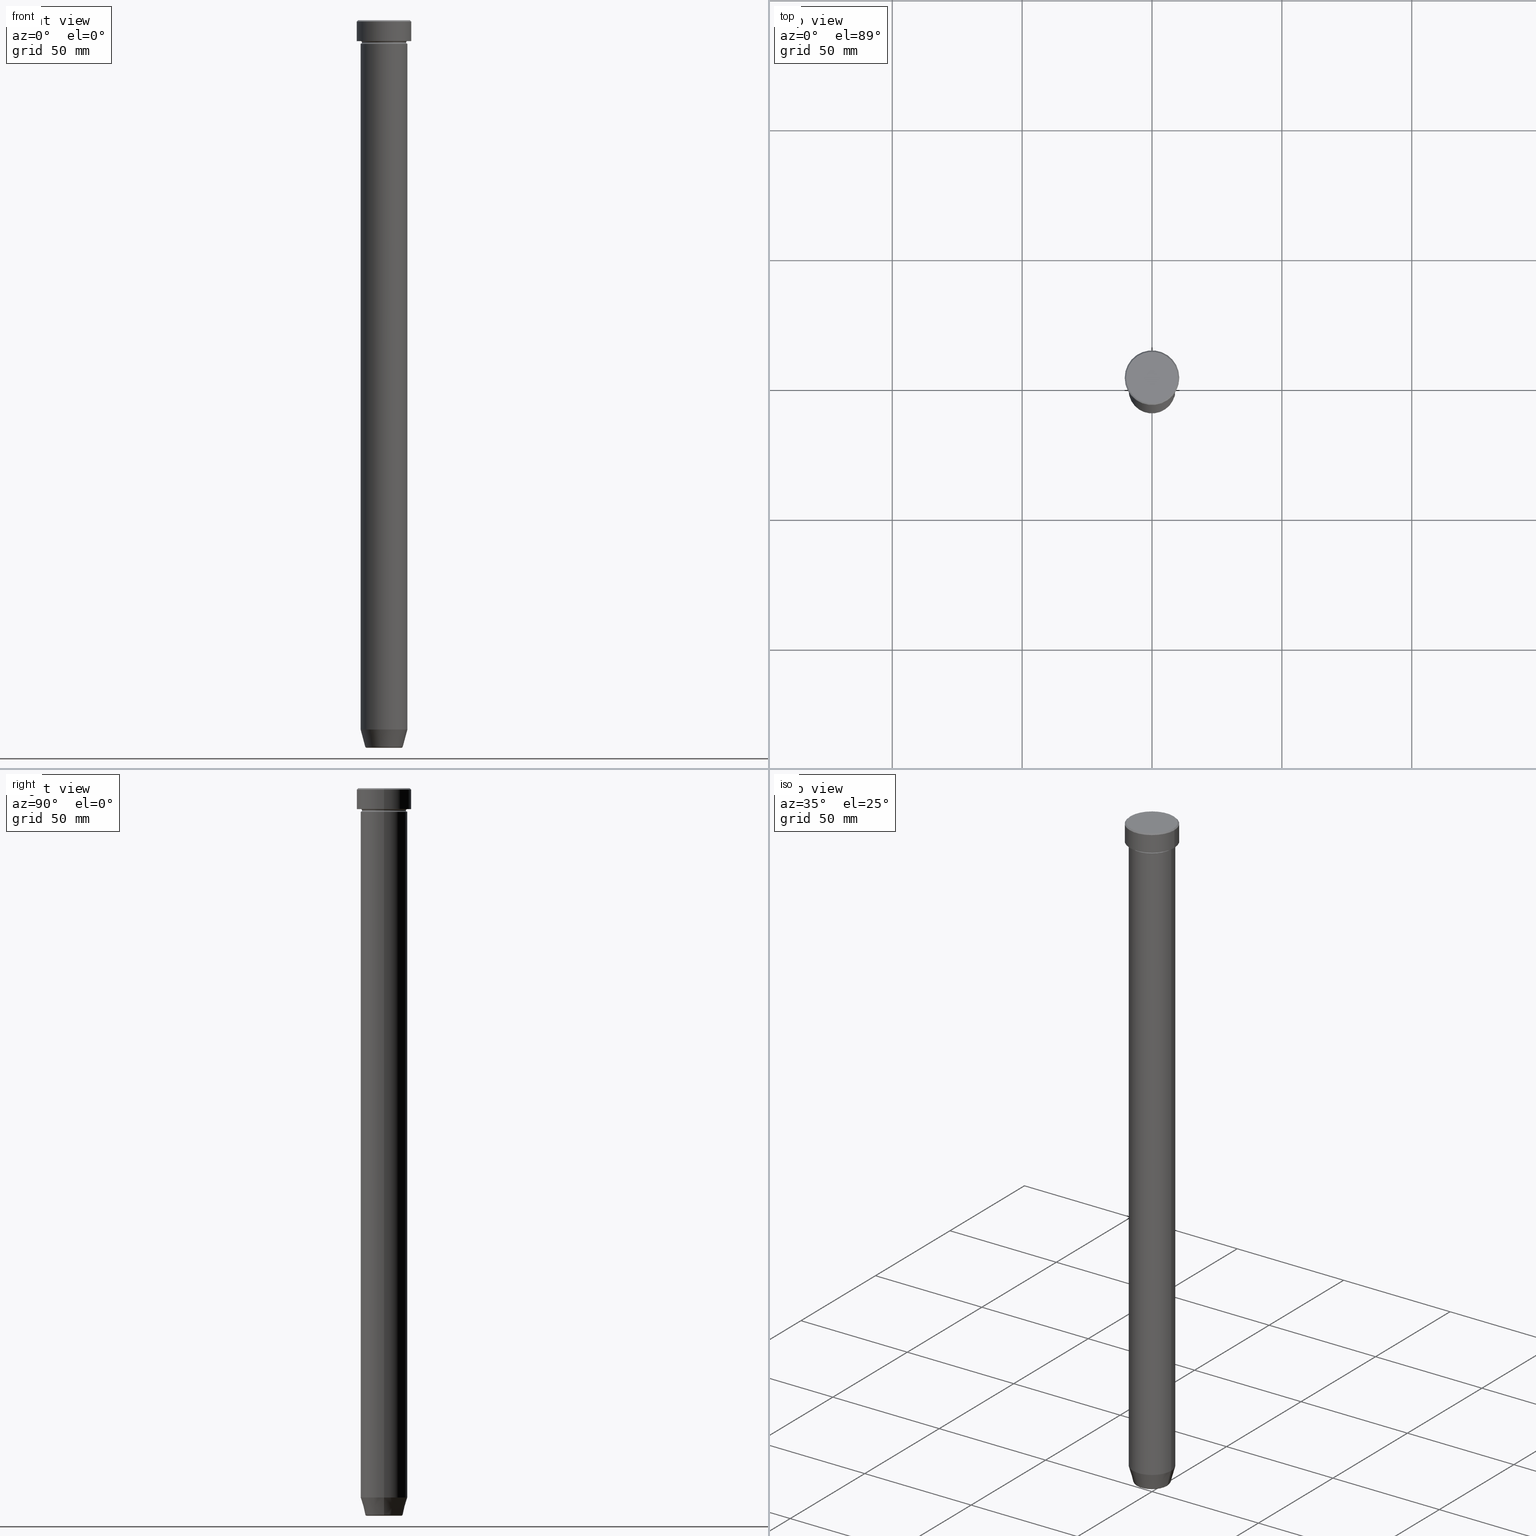
[diagram: canonical four-view strip — front | top / right | iso, engineering-drawing reading convention]
A machine part, canonical four-view strip (front | top / right | iso — engineering-drawing reading convention). The complete STEP part file that produces these views, byte-faithful:
ISO-10303-21;
HEADER;
FILE_DESCRIPTION (( 'STEP AP203' ),
    '1' );
FILE_NAME ('5276.STEP',
    '2024-01-02T20:54:48',
    ( '' ),
    ( '' ),
    'SwSTEP 2.0',
    'SolidWorks 2019',
    '' );
FILE_SCHEMA (( 'CONFIG_CONTROL_DESIGN' ));
ENDSEC;

DATA;
#1 = CARTESIAN_POINT ( 'NONE',  ( 10.50000000000000000, 0.000000000000000000, -0.5000000000000023315 ) ) ;
#2 = DIRECTION ( 'NONE',  ( -0.000000000000000000, -0.000000000000000000, 1.000000000000000000 ) ) ;
#3 = DIRECTION ( 'NONE',  ( -0.000000000000000000, -0.000000000000000000, 1.000000000000000000 ) ) ;
#4 = ADVANCED_FACE ( 'NONE', ( #550 ), #119, .T. ) ;
#5 = ORIENTED_EDGE ( 'NONE', *, *, #468, .F. ) ;
#6 = CARTESIAN_POINT ( 'NONE',  ( 9.000000000000000000, 1.102182119232617714E-15, -8.500000000000000000 ) ) ;
#7 = CIRCLE ( 'NONE', #60, 9.000000000000000000 ) ;
#8 = VECTOR ( 'NONE', #289, 1000.000000000000000 ) ;
#9 = FACE_OUTER_BOUND ( 'NONE', #254, .T. ) ;
#10 = EDGE_LOOP ( 'NONE', ( #556, #300, #425, #75 ) ) ;
#11 = EDGE_CURVE ( 'NONE', #19, #496, #234, .T. ) ;
#12 = ORIENTED_EDGE ( 'NONE', *, *, #284, .T. ) ;
#13 = LINE ( 'NONE', #472, #8 ) ;
#14 = CIRCLE ( 'NONE', #338, 6.740692158992659166 ) ;
#15 = EDGE_LOOP ( 'NONE', ( #353, #212, #362, #156 ) ) ;
#16 = PLANE ( 'NONE',  #386 ) ;
#17 = AXIS2_PLACEMENT_3D ( 'NONE', #568, #56, #240 ) ;
#18 = DIRECTION ( 'NONE',  ( 1.000000000000000000, 0.000000000000000000, 0.000000000000000000 ) ) ;
#19 = VERTEX_POINT ( 'NONE', #82 ) ;
#20 = CARTESIAN_POINT ( 'NONE',  ( 9.000000000000000000, 0.000000000000000000, -22.00000000000000000 ) ) ;
#21 = ADVANCED_FACE ( 'NONE', ( #563 ), #138, .T. ) ;
#22 = ORIENTED_EDGE ( 'NONE', *, *, #128, .T. ) ;
#23 = DIRECTION ( 'NONE',  ( -0.000000000000000000, -0.000000000000000000, 1.000000000000000000 ) ) ;
#24 = ORIENTED_EDGE ( 'NONE', *, *, #100, .F. ) ;
#25 = CIRCLE ( 'NONE', #135, 9.000000000000000000 ) ;
#26 = DIRECTION ( 'NONE',  ( -1.000000000000000000, 0.000000000000000000, 0.000000000000000000 ) ) ;
#27 = CALENDAR_DATE ( 2024, 2, 1 ) ;
#28 = ADVANCED_FACE ( 'NONE', ( #175 ), #403, .T. ) ;
#29 = DIRECTION ( 'NONE',  ( 0.7071067811865450192, 8.659560562354902043E-17, -0.7071067811865500152 ) ) ;
#30 = APPROVAL_DATE_TIME ( #586, #286 ) ;
#31 = PLANE ( 'NONE',  #354 ) ;
#32 = PERSON_AND_ORGANIZATION_ROLE ( 'design_owner' ) ;
#33 = CARTESIAN_POINT ( 'NONE',  ( 0.000000000000000000, 0.000000000000000000, 0.000000000000000000 ) ) ;
#34 = SECURITY_CLASSIFICATION_LEVEL ( 'unclassified' ) ;
#35 = EDGE_LOOP ( 'NONE', ( #433, #150, #217, #55 ) ) ;
#36 = EDGE_LOOP ( 'NONE', ( #451, #401 ) ) ;
#37 = DIRECTION ( 'NONE',  ( 0.000000000000000000, -1.000000000000000000, 0.000000000000000000 ) ) ;
#38 = VERTEX_POINT ( 'NONE', #85 ) ;
#39 = ADVANCED_FACE ( 'NONE', ( #41 ), #517, .T. ) ;
#40 = FACE_OUTER_BOUND ( 'NONE', #440, .T. ) ;
#41 = FACE_OUTER_BOUND ( 'NONE', #411, .T. ) ;
#42 = CARTESIAN_POINT ( 'NONE',  ( 0.000000000000000000, 0.000000000000000000, -8.500000000000000000 ) ) ;
#43 = DIRECTION ( 'NONE',  ( 1.000000000000000000, 0.000000000000000000, 0.000000000000000000 ) ) ;
#44 = CIRCLE ( 'NONE', #346, 10.00000000000000178 ) ;
#45 = FACE_OUTER_BOUND ( 'NONE', #241, .T. ) ;
#46 = EDGE_CURVE ( 'NONE', #413, #279, #92, .T. ) ;
#47 = DIRECTION ( 'NONE',  ( 1.000000000000000000, 0.000000000000000000, 0.000000000000000000 ) ) ;
#48 = DIRECTION ( 'NONE',  ( 1.000000000000000000, 0.000000000000000000, 0.000000000000000000 ) ) ;
#49 = PERSON ( 'NEUR�EN�', 'NEUR�EN�', 'NEUR�EN�', ('NEUR�EN�'), ('NEUR�EN�'), ('NEUR�EN�') ) ;
#50 = ORIENTED_EDGE ( 'NONE', *, *, #516, .T. ) ;
#51 = DIRECTION ( 'NONE',  ( 0.000000000000000000, 0.000000000000000000, -1.000000000000000000 ) ) ;
#52 = VECTOR ( 'NONE', #502, 1000.000000000000114 ) ;
#53 = ORIENTED_EDGE ( 'NONE', *, *, #147, .F. ) ;
#54 = CIRCLE ( 'NONE', #199, 6.740692158992659166 ) ;
#55 = ORIENTED_EDGE ( 'NONE', *, *, #492, .F. ) ;
#56 = DIRECTION ( 'NONE',  ( -0.000000000000000000, -0.000000000000000000, 1.000000000000000000 ) ) ;
#57 = VERTEX_POINT ( 'NONE', #1 ) ;
#58 = DIRECTION ( 'NONE',  ( -0.000000000000000000, -0.000000000000000000, 1.000000000000000000 ) ) ;
#59 = CARTESIAN_POINT ( 'NONE',  ( 9.000000000000000000, 0.000000000000000000, 0.000000000000000000 ) ) ;
#60 = AXIS2_PLACEMENT_3D ( 'NONE', #459, #462, #273 ) ;
#61 = CARTESIAN_POINT ( 'NONE',  ( 0.000000000000000000, 0.000000000000000000, -273.0000000000000000 ) ) ;
#62 = EDGE_CURVE ( 'NONE', #126, #421, #14, .T. ) ;
#63 = CARTESIAN_POINT ( 'NONE',  ( 9.000000000000000000, 1.102182119232617714E-15, -8.000000000000000000 ) ) ;
#64 = ORIENTED_EDGE ( 'NONE', *, *, #524, .T. ) ;
#65 = DIRECTION ( 'NONE',  ( -0.2588190451025210725, 3.169619151431769255E-17, 0.9659258262890680902 ) ) ;
#66 = DATE_AND_TIME ( #253, #363 ) ;
#67 = EDGE_CURVE ( 'NONE', #565, #129, #83, .T. ) ;
#68 = CIRCLE ( 'NONE', #113, 8.499999999999998224 ) ;
#69 = AXIS2_PLACEMENT_3D ( 'NONE', #424, #523, #229 ) ;
#70 = DIRECTION ( 'NONE',  ( -1.000000000000000000, 0.000000000000000000, 0.000000000000000000 ) ) ;
#71 = FACE_OUTER_BOUND ( 'NONE', #233, .T. ) ;
#72 = PERSON_AND_ORGANIZATION_ROLE ( 'classification_officer' ) ;
#73 = CARTESIAN_POINT ( 'NONE',  ( -9.000000000000000000, 1.102182119232617714E-15, -8.500000000000000000 ) ) ;
#74 = CALENDAR_DATE ( 2024, 2, 1 ) ;
#75 = ORIENTED_EDGE ( 'NONE', *, *, #46, .T. ) ;
#76 = CIRCLE ( 'NONE', #352, 10.50000000000000000 ) ;
#77 = CARTESIAN_POINT ( 'NONE',  ( -10.50000000000000000, 1.285879139104720831E-15, -8.000000000000000000 ) ) ;
#78 = CIRCLE ( 'NONE', #418, 10.50000000000000000 ) ;
#79 = ADVANCED_FACE ( 'NONE', ( #180 ), #579, .T. ) ;
#80 = ORIENTED_EDGE ( 'NONE', *, *, #561, .T. ) ;
#81 = DIRECTION ( 'NONE',  ( -0.000000000000000000, -0.000000000000000000, 1.000000000000000000 ) ) ;
#82 = CARTESIAN_POINT ( 'NONE',  ( 9.000000000000000000, 0.000000000000000000, -273.0000000000000000 ) ) ;
#83 = CIRCLE ( 'NONE', #178, 0.5000000000000004441 ) ;
#84 = CARTESIAN_POINT ( 'NONE',  ( -9.000000000000000000, 1.102182119232617714E-15, -273.0000000000000000 ) ) ;
#85 = CARTESIAN_POINT ( 'NONE',  ( -9.000000000000000000, 1.102182119232617714E-15, -22.00000000000000000 ) ) ;
#86 = ADVANCED_FACE ( 'NONE', ( #278 ), #452, .T. ) ;
#87 = AXIS2_PLACEMENT_3D ( 'NONE', #249, #589, #209 ) ;
#88 = FACE_OUTER_BOUND ( 'NONE', #10, .T. ) ;
#89 = CIRCLE ( 'NONE', #429, 0.5000000000000004441 ) ;
#90 = DIRECTION ( 'NONE',  ( 1.000000000000000000, 0.000000000000000000, 0.000000000000000000 ) ) ;
#91 = CC_DESIGN_DATE_AND_TIME_ASSIGNMENT ( #66, #198, ( #405 ) ) ;
#92 = CIRCLE ( 'NONE', #482, 9.000000000000000000 ) ;
#93 = DIRECTION ( 'NONE',  ( -0.000000000000000000, -1.000000000000000000, -0.000000000000000000 ) ) ;
#94 = EDGE_LOOP ( 'NONE', ( #342, #368 ) ) ;
#95 = CYLINDRICAL_SURFACE ( 'NONE', #17, 10.50000000000000000 ) ;
#96 = AXIS2_PLACEMENT_3D ( 'NONE', #223, #412, #48 ) ;
#97 = ADVANCED_FACE ( 'NONE', ( #595 ), #102, .T. ) ;
#98 = CARTESIAN_POINT ( 'NONE',  ( 6.740692158992659166, 0.000000000000000000, -279.5000000000000000 ) ) ;
#99 = CARTESIAN_POINT ( 'NONE',  ( 0.000000000000000000, 0.000000000000000000, -8.000000000000000000 ) ) ;
#100 = EDGE_CURVE ( 'NONE', #406, #57, #306, .T. ) ;
#101 = VERTEX_POINT ( 'NONE', #566 ) ;
#102 = PLANE ( 'NONE',  #69 ) ;
#103 = DIRECTION ( 'NONE',  ( -0.000000000000000000, -0.000000000000000000, 1.000000000000000000 ) ) ;
#104 = CC_DESIGN_PERSON_AND_ORGANIZATION_ASSIGNMENT ( #159, #439, ( #374 ) ) ;
#105 = ORIENTED_EDGE ( 'NONE', *, *, #596, .F. ) ;
#106 = DIRECTION ( 'NONE',  ( 1.000000000000000000, 0.000000000000000000, 0.000000000000000000 ) ) ;
#107 = APPROVAL_ROLE ( '' ) ;
#108 = EDGE_CURVE ( 'NONE', #421, #126, #54, .T. ) ;
#109 = PLANE ( 'NONE',  #87 ) ;
#110 = APPROVAL_DATE_TIME ( #345, #463 ) ;
#111 = ORIENTED_EDGE ( 'NONE', *, *, #329, .T. ) ;
#112 = PRODUCT_DEFINITION_SHAPE ( 'NONE', 'NONE',  #422 ) ;
#113 = AXIS2_PLACEMENT_3D ( 'NONE', #179, #315, #552 ) ;
#114 = CIRCLE ( 'NONE', #283, 9.000000000000000000 ) ;
#115 = LINE ( 'NONE', #441, #270 ) ;
#116 = CARTESIAN_POINT ( 'NONE',  ( 0.000000000000000000, 0.000000000000000000, -22.00000000000000000 ) ) ;
#117 = COORDINATED_UNIVERSAL_TIME_OFFSET ( 1, 0, .AHEAD. ) ;
#118 = VERTEX_POINT ( 'NONE', #20 ) ;
#119 = CONICAL_SURFACE ( 'NONE', #255, 7.124355652982136355, 0.2617993877991497964 ) ;
#120 = EDGE_CURVE ( 'NONE', #118, #413, #140, .T. ) ;
#121 = DIRECTION ( 'NONE',  ( 1.000000000000000000, 0.000000000000000000, 0.000000000000000000 ) ) ;
#122 = VERTEX_POINT ( 'NONE', #143 ) ;
#123 = AXIS2_PLACEMENT_3D ( 'NONE', #6, #419, #515 ) ;
#124 = FACE_OUTER_BOUND ( 'NONE', #230, .T. ) ;
#125 = AXIS2_PLACEMENT_3D ( 'NONE', #347, #544, #246 ) ;
#126 = VERTEX_POINT ( 'NONE', #194 ) ;
#127 = LINE ( 'NONE', #137, #236 ) ;
#128 = EDGE_CURVE ( 'NONE', #431, #153, #520, .T. ) ;
#129 = VERTEX_POINT ( 'NONE', #321 ) ;
#130 = DIRECTION ( 'NONE',  ( -0.000000000000000000, -0.000000000000000000, 1.000000000000000000 ) ) ;
#131 = DIRECTION ( 'NONE',  ( 0.000000000000000000, 0.000000000000000000, -1.000000000000000000 ) ) ;
#132 = AXIS2_PLACEMENT_3D ( 'NONE', #183, #2, #557 ) ;
#133 = DIRECTION ( 'NONE',  ( 0.000000000000000000, 0.000000000000000000, -1.000000000000000000 ) ) ;
#134 = EDGE_LOOP ( 'NONE', ( #272, #382 ) ) ;
#135 = AXIS2_PLACEMENT_3D ( 'NONE', #197, #539, #384 ) ;
#136 = ORIENTED_EDGE ( 'NONE', *, *, #359, .T. ) ;
#137 = CARTESIAN_POINT ( 'NONE',  ( -10.00000000000000178, 0.000000000000000000, 0.000000000000000000 ) ) ;
#138 = CYLINDRICAL_SURFACE ( 'NONE', #474, 9.000000000000000000 ) ;
#139 = ADVANCED_FACE ( 'NONE', ( #373 ), #325, .T. ) ;
#140 = LINE ( 'NONE', #59, #404 ) ;
#141 = AXIS2_PLACEMENT_3D ( 'NONE', #99, #377, #575 ) ;
#142 = UNCERTAINTY_MEASURE_WITH_UNIT (LENGTH_MEASURE( 1.000000000000000082E-05 ), #277, 'distance_accuracy_value', 'NONE');
#143 = CARTESIAN_POINT ( 'NONE',  ( -9.000000000000000000, 1.102182119232617714E-15, -22.00000000000000000 ) ) ;
#144 = AXIS2_PLACEMENT_3D ( 'NONE', #173, #37, #454 ) ;
#145 = CIRCLE ( 'NONE', #490, 10.00000000000000178 ) ;
#146 = DIRECTION ( 'NONE',  ( 1.000000000000000000, 0.000000000000000000, 0.000000000000000000 ) ) ;
#147 = EDGE_CURVE ( 'NONE', #153, #57, #13, .T. ) ;
#148 = ORIENTED_EDGE ( 'NONE', *, *, #174, .F. ) ;
#149 = FACE_OUTER_BOUND ( 'NONE', #521, .T. ) ;
#150 = ORIENTED_EDGE ( 'NONE', *, *, #267, .T. ) ;
#151 = LOCAL_TIME ( 21, 54, 48.00000000000000000, #442 ) ;
#152 = AXIS2_PLACEMENT_3D ( 'NONE', #61, #573, #572 ) ;
#153 = VERTEX_POINT ( 'NONE', #328 ) ;
#154 = CARTESIAN_POINT ( 'NONE',  ( -6.740692158992659166, 8.254967076548021241E-16, -279.5000000000000000 ) ) ;
#155 = APPROVAL_DATE_TIME ( #302, #409 ) ;
#156 = ORIENTED_EDGE ( 'NONE', *, *, #200, .F. ) ;
#157 = DIRECTION ( 'NONE',  ( 1.224646799147353207E-16, 1.000000000000000000, 0.000000000000000000 ) ) ;
#158 = EDGE_CURVE ( 'NONE', #126, #196, #193, .T. ) ;
#159 = PERSON_AND_ORGANIZATION ( #49, #477 ) ;
#160 = CARTESIAN_POINT ( 'NONE',  ( -10.00000000000000178, 0.000000000000000000, 0.000000000000000000 ) ) ;
#161 = PERSON_AND_ORGANIZATION ( #49, #477 ) ;
#162 = CIRCLE ( 'NONE', #511, 0.5000000000000004441 ) ;
#163 = DIRECTION ( 'NONE',  ( 1.000000000000000000, 0.000000000000000000, 0.000000000000000000 ) ) ;
#164 = ORIENTED_EDGE ( 'NONE', *, *, #561, .F. ) ;
#165 = EDGE_CURVE ( 'NONE', #19, #320, #324, .T. ) ;
#166 = CARTESIAN_POINT ( 'NONE',  ( 0.000000000000000000, 0.000000000000000000, 0.000000000000000000 ) ) ;
#167 = MECHANICAL_CONTEXT ( 'NONE', #501, 'mechanical' ) ;
#168 = VERTEX_POINT ( 'NONE', #235 ) ;
#169 = CARTESIAN_POINT ( 'NONE',  ( 8.499999999999998224, 0.000000000000000000, -8.500000000000000000 ) ) ;
#170 = DIRECTION ( 'NONE',  ( -0.000000000000000000, -0.000000000000000000, 1.000000000000000000 ) ) ;
#171 = ORIENTED_EDGE ( 'NONE', *, *, #378, .F. ) ;
#172 = APPROVAL_PERSON_ORGANIZATION ( #340, #463, #247 ) ;
#173 = CARTESIAN_POINT ( 'NONE',  ( 9.000000000000000000, 0.000000000000000000, -8.500000000000000000 ) ) ;
#174 = EDGE_CURVE ( 'NONE', #122, #118, #541, .T. ) ;
#175 = FACE_OUTER_BOUND ( 'NONE', #479, .T. ) ;
#176 = LINE ( 'NONE', #554, #52 ) ;
#177 = CARTESIAN_POINT ( 'NONE',  ( 0.000000000000000000, 0.000000000000000000, -280.0000000000000000 ) ) ;
#178 = AXIS2_PLACEMENT_3D ( 'NONE', #555, #93, #131 ) ;
#179 = CARTESIAN_POINT ( 'NONE',  ( 0.000000000000000000, 0.000000000000000000, -8.500000000000000000 ) ) ;
#180 = FACE_OUTER_BOUND ( 'NONE', #290, .T. ) ;
#181 = ORIENTED_EDGE ( 'NONE', *, *, #62, .F. ) ;
#182 = AXIS2_PLACEMENT_3D ( 'NONE', #357, #130, #90 ) ;
#183 = CARTESIAN_POINT ( 'NONE',  ( 0.000000000000000000, 0.000000000000000000, 0.000000000000000000 ) ) ;
#184 = DIRECTION ( 'NONE',  ( 1.000000000000000000, 0.000000000000000000, 0.000000000000000000 ) ) ;
#185 = AXIS2_PLACEMENT_3D ( 'NONE', #380, #327, #191 ) ;
#186 = ORIENTED_EDGE ( 'NONE', *, *, #292, .T. ) ;
#187 = EDGE_CURVE ( 'NONE', #129, #391, #499, .T. ) ;
#188 = DIRECTION ( 'NONE',  ( 0.000000000000000000, 0.000000000000000000, -1.000000000000000000 ) ) ;
#189 = ORIENTED_EDGE ( 'NONE', *, *, #341, .F. ) ;
#190 = CARTESIAN_POINT ( 'NONE',  ( 0.000000000000000000, 0.000000000000000000, -279.5000000000000000 ) ) ;
#191 = DIRECTION ( 'NONE',  ( 1.000000000000000000, 0.000000000000000000, 0.000000000000000000 ) ) ;
#192 = EDGE_CURVE ( 'NONE', #153, #431, #78, .T. ) ;
#193 = CIRCLE ( 'NONE', #297, 0.5000000000000004441 ) ;
#194 = CARTESIAN_POINT ( 'NONE',  ( 6.740692158992659166, 0.000000000000000000, -280.0000000000000000 ) ) ;
#195 = CARTESIAN_POINT ( 'NONE',  ( 0.000000000000000000, 10.50000000000000000, -8.000000000000000000 ) ) ;
#196 = VERTEX_POINT ( 'NONE', #285 ) ;
#197 = CARTESIAN_POINT ( 'NONE',  ( 0.000000000000000000, 0.000000000000000000, -22.00000000000000000 ) ) ;
#198 = DATE_TIME_ROLE ( 'classification_date' ) ;
#199 = AXIS2_PLACEMENT_3D ( 'NONE', #473, #370, #529 ) ;
#200 = EDGE_CURVE ( 'NONE', #496, #19, #220, .T. ) ;
#201 = ORIENTED_EDGE ( 'NONE', *, *, #187, .T. ) ;
#202 = DIRECTION ( 'NONE',  ( -1.000000000000000000, 1.224646799147353454E-16, 0.000000000000000000 ) ) ;
#203 = PERSON_AND_ORGANIZATION ( #49, #477 ) ;
#204 = AXIS2_PLACEMENT_3D ( 'NONE', #509, #170, #319 ) ;
#205 = FACE_OUTER_BOUND ( 'NONE', #94, .T. ) ;
#206 = APPLICATION_PROTOCOL_DEFINITION ( 'international standard', 'config_control_design', 1994, #501 ) ;
#207 = ADVANCED_FACE ( 'NONE', ( #9 ), #95, .T. ) ;
#208 = APPROVAL_PERSON_ORGANIZATION ( #390, #409, #107 ) ;
#209 = DIRECTION ( 'NONE',  ( 1.000000000000000000, 0.000000000000000000, 0.000000000000000000 ) ) ;
#210 = COORDINATED_UNIVERSAL_TIME_OFFSET ( 1, 0, .AHEAD. ) ;
#211 = ORIENTED_EDGE ( 'NONE', *, *, #200, .T. ) ;
#212 = ORIENTED_EDGE ( 'NONE', *, *, #533, .T. ) ;
#213 = DIRECTION ( 'NONE',  ( -0.000000000000000000, -0.000000000000000000, 1.000000000000000000 ) ) ;
#214 = ORIENTED_EDGE ( 'NONE', *, *, #475, .T. ) ;
#215 = MANIFOLD_SOLID_BREP ( 'Zkosen�1', #379 ) ;
#216 = ADVANCED_FACE ( 'NONE', ( #420, #432 ), #16, .T. ) ;
#217 = ORIENTED_EDGE ( 'NONE', *, *, #11, .F. ) ;
#218 = APPROVAL_PERSON_ORGANIZATION ( #484, #286, #547 ) ;
#219 = DIRECTION ( 'NONE',  ( 1.000000000000000000, 0.000000000000000000, 0.000000000000000000 ) ) ;
#220 = CIRCLE ( 'NONE', #152, 9.000000000000000000 ) ;
#221 = DIRECTION ( 'NONE',  ( 1.000000000000000000, 0.000000000000000000, 0.000000000000000000 ) ) ;
#222 = ORIENTED_EDGE ( 'NONE', *, *, #475, .F. ) ;
#223 = CARTESIAN_POINT ( 'NONE',  ( 0.000000000000000000, 0.000000000000000000, -8.500000000000000000 ) ) ;
#224 = DIRECTION ( 'NONE',  ( 0.000000000000000000, 0.000000000000000000, -1.000000000000000000 ) ) ;
#225 = ORIENTED_EDGE ( 'NONE', *, *, #322, .T. ) ;
#226 = ADVANCED_FACE ( 'NONE', ( #149 ), #571, .T. ) ;
#227 = AXIS2_PLACEMENT_3D ( 'NONE', #42, #133, #414 ) ;
#228 = DIRECTION ( 'NONE',  ( 1.000000000000000000, 0.000000000000000000, 0.000000000000000000 ) ) ;
#229 = DIRECTION ( 'NONE',  ( -1.000000000000000000, 0.000000000000000000, -0.000000000000000000 ) ) ;
#230 = EDGE_LOOP ( 'NONE', ( #567, #111, #80, #318 ) ) ;
#231 = DIRECTION ( 'NONE',  ( -1.000000000000000000, 0.000000000000000000, -0.000000000000000000 ) ) ;
#232 = EDGE_CURVE ( 'NONE', #371, #101, #44, .T. ) ;
#233 = EDGE_LOOP ( 'NONE', ( #336, #12, #5, #330 ) ) ;
#234 = CIRCLE ( 'NONE', #443, 9.000000000000000000 ) ;
#235 = CARTESIAN_POINT ( 'NONE',  ( -7.223655072137189492, 9.934123627281763137E-16, -279.6294095225512706 ) ) ;
#236 = VECTOR ( 'NONE', #594, 1000.000000000000000 ) ;
#237 = CARTESIAN_POINT ( 'NONE',  ( 0.000000000000000000, 0.000000000000000000, -8.000000000000000000 ) ) ;
#238 = CIRCLE ( 'NONE', #570, 7.223655072137189492 ) ;
#239 = ORIENTED_EDGE ( 'NONE', *, *, #232, .T. ) ;
#240 = DIRECTION ( 'NONE',  ( 1.000000000000000000, 0.000000000000000000, 0.000000000000000000 ) ) ;
#241 = EDGE_LOOP ( 'NONE', ( #578, #181, #293, #582 ) ) ;
#242 = CARTESIAN_POINT ( 'NONE',  ( -10.50000000000000000, 1.285879139104720831E-15, -0.5000000000000023315 ) ) ;
#243 = DIRECTION ( 'NONE',  ( 0.000000000000000000, 0.000000000000000000, 1.000000000000000000 ) ) ;
#244 = ADVANCED_FACE ( 'NONE', ( #335 ), #591, .F. ) ;
#245 = ORIENTED_EDGE ( 'NONE', *, *, #100, .T. ) ;
#246 = DIRECTION ( 'NONE',  ( -1.000000000000000000, 0.000000000000000000, 0.000000000000000000 ) ) ;
#247 = APPROVAL_ROLE ( '' ) ;
#248 =( GEOMETRIC_REPRESENTATION_CONTEXT ( 3 ) GLOBAL_UNCERTAINTY_ASSIGNED_CONTEXT ( ( #142 ) ) GLOBAL_UNIT_ASSIGNED_CONTEXT ( ( #277, #369, #466 ) ) REPRESENTATION_CONTEXT ( 'NONE', 'WORKASPACE' ) );
#249 = CARTESIAN_POINT ( 'NONE',  ( 0.000000000000000000, 2.816687638038912825E-14, -280.0000000000000000 ) ) ;
#250 = COORDINATED_UNIVERSAL_TIME_OFFSET ( 1, 0, .AHEAD. ) ;
#251 = CC_DESIGN_PERSON_AND_ORGANIZATION_ASSIGNMENT ( #581, #32, ( #527 ) ) ;
#252 = DIRECTION ( 'NONE',  ( -0.000000000000000000, -0.000000000000000000, 1.000000000000000000 ) ) ;
#253 = CALENDAR_DATE ( 2024, 2, 1 ) ;
#254 = EDGE_LOOP ( 'NONE', ( #222, #22, #465, #258 ) ) ;
#255 = AXIS2_PLACEMENT_3D ( 'NONE', #415, #308, #184 ) ;
#256 = CYLINDRICAL_SURFACE ( 'NONE', #470, 9.000000000000000000 ) ;
#257 = CALENDAR_DATE ( 2024, 2, 1 ) ;
#258 = ORIENTED_EDGE ( 'NONE', *, *, #569, .T. ) ;
#259 = AXIS2_PLACEMENT_3D ( 'NONE', #385, #243, #489 ) ;
#260 = EDGE_LOOP ( 'NONE', ( #453, #280, #387, #397 ) ) ;
#261 = AXIS2_PLACEMENT_3D ( 'NONE', #312, #224, #513 ) ;
#262 = CARTESIAN_POINT ( 'NONE',  ( -6.740692158992659166, 8.550696569392690612E-16, -280.0000000000000000 ) ) ;
#263 = ORIENTED_EDGE ( 'NONE', *, *, #232, .F. ) ;
#264 = ORIENTED_EDGE ( 'NONE', *, *, #378, .T. ) ;
#265 = DIRECTION ( 'NONE',  ( 1.000000000000000000, 0.000000000000000000, 0.000000000000000000 ) ) ;
#266 = DIRECTION ( 'NONE',  ( 1.000000000000000000, 0.000000000000000000, 0.000000000000000000 ) ) ;
#267 = EDGE_CURVE ( 'NONE', #168, #496, #493, .T. ) ;
#268 = DIRECTION ( 'NONE',  ( -1.000000000000000000, 0.000000000000000000, 0.000000000000000000 ) ) ;
#269 = DIRECTION ( 'NONE',  ( -0.000000000000000000, -0.000000000000000000, 1.000000000000000000 ) ) ;
#270 = VECTOR ( 'NONE', #29, 1000.000000000000000 ) ;
#271 = DIRECTION ( 'NONE',  ( -0.000000000000000000, -0.000000000000000000, 1.000000000000000000 ) ) ;
#272 = ORIENTED_EDGE ( 'NONE', *, *, #468, .T. ) ;
#273 = DIRECTION ( 'NONE',  ( 1.000000000000000000, 0.000000000000000000, 0.000000000000000000 ) ) ;
#274 = EDGE_CURVE ( 'NONE', #101, #371, #145, .T. ) ;
#275 = ORIENTED_EDGE ( 'NONE', *, *, #524, .F. ) ;
#276 = AXIS2_PLACEMENT_3D ( 'NONE', #361, #460, #43 ) ;
#277 =( LENGTH_UNIT ( ) NAMED_UNIT ( * ) SI_UNIT ( .MILLI., .METRE. ) );
#278 = FACE_OUTER_BOUND ( 'NONE', #337, .T. ) ;
#279 = VERTEX_POINT ( 'NONE', #296 ) ;
#280 = ORIENTED_EDGE ( 'NONE', *, *, #596, .T. ) ;
#281 = CIRCLE ( 'NONE', #123, 0.5000000000000004441 ) ;
#282 = CARTESIAN_POINT ( 'NONE',  ( 0.000000000000000000, 0.000000000000000000, -0.5000000000000023315 ) ) ;
#283 = AXIS2_PLACEMENT_3D ( 'NONE', #583, #438, #26 ) ;
#284 = EDGE_CURVE ( 'NONE', #496, #38, #339, .T. ) ;
#285 = CARTESIAN_POINT ( 'NONE',  ( 7.223655072137189492, 0.000000000000000000, -279.6294095225512706 ) ) ;
#286 = APPROVAL ( #435, 'NEUR�EN�' ) ;
#287 = DIRECTION ( 'NONE',  ( 1.000000000000000000, 0.000000000000000000, 0.000000000000000000 ) ) ;
#288 = CIRCLE ( 'NONE', #576, 8.499999999999998224 ) ;
#289 = DIRECTION ( 'NONE',  ( -0.000000000000000000, -0.000000000000000000, 1.000000000000000000 ) ) ;
#290 = EDGE_LOOP ( 'NONE', ( #303, #264, #24, #275 ) ) ;
#291 = DIRECTION ( 'NONE',  ( -0.000000000000000000, -0.000000000000000000, 1.000000000000000000 ) ) ;
#292 = EDGE_CURVE ( 'NONE', #391, #129, #114, .T. ) ;
#293 = ORIENTED_EDGE ( 'NONE', *, *, #158, .T. ) ;
#294 = DIRECTION ( 'NONE',  ( -0.000000000000000000, -0.000000000000000000, 1.000000000000000000 ) ) ;
#295 = PERSON_AND_ORGANIZATION_ROLE ( 'creator' ) ;
#296 = CARTESIAN_POINT ( 'NONE',  ( -9.000000000000000000, 1.102182119232617714E-15, -9.000000000000001776 ) ) ;
#297 = AXIS2_PLACEMENT_3D ( 'NONE', #98, #525, #518 ) ;
#298 = CC_DESIGN_DATE_AND_TIME_ASSIGNMENT ( #349, #584, ( #422 ) ) ;
#299 = DIRECTION ( 'NONE',  ( 1.224646799147353207E-16, 1.000000000000000000, 0.000000000000000000 ) ) ;
#300 = ORIENTED_EDGE ( 'NONE', *, *, #516, .F. ) ;
#301 = FACE_OUTER_BOUND ( 'NONE', #134, .T. ) ;
#302 = DATE_AND_TIME ( #257, #549 ) ;
#303 = ORIENTED_EDGE ( 'NONE', *, *, #274, .F. ) ;
#304 = CARTESIAN_POINT ( 'NONE',  ( -9.000000000000000000, 1.102182119232617714E-15, 0.000000000000000000 ) ) ;
#305 = CIRCLE ( 'NONE', #394, 9.000000000000000000 ) ;
#306 = CIRCLE ( 'NONE', #486, 10.50000000000000000 ) ;
#307 = EDGE_CURVE ( 'NONE', #38, #320, #25, .T. ) ;
#308 = DIRECTION ( 'NONE',  ( -0.000000000000000000, -0.000000000000000000, 1.000000000000000000 ) ) ;
#309 = CC_DESIGN_PERSON_AND_ORGANIZATION_ASSIGNMENT ( #161, #72, ( #405 ) ) ;
#310 = CARTESIAN_POINT ( 'NONE',  ( -10.50000000000000000, 1.285879139104720831E-15, 0.000000000000000000 ) ) ;
#311 = CARTESIAN_POINT ( 'NONE',  ( -8.499999999999998224, 1.071565949253933927E-15, -8.500000000000000000 ) ) ;
#312 = CARTESIAN_POINT ( 'NONE',  ( 0.000000000000000000, 0.000000000000000000, 0.000000000000000000 ) ) ;
#313 = AXIS2_PLACEMENT_3D ( 'NONE', #512, #351, #268 ) ;
#314 = ADVANCED_FACE ( 'NONE', ( #301 ), #31, .F. ) ;
#315 = DIRECTION ( 'NONE',  ( -0.000000000000000000, -0.000000000000000000, 1.000000000000000000 ) ) ;
#316 = VECTOR ( 'NONE', #23, 1000.000000000000000 ) ;
#317 = DIRECTION ( 'NONE',  ( 1.000000000000000000, 0.000000000000000000, 0.000000000000000000 ) ) ;
#318 = ORIENTED_EDGE ( 'NONE', *, *, #458, .F. ) ;
#319 = DIRECTION ( 'NONE',  ( 1.000000000000000000, 0.000000000000000000, 0.000000000000000000 ) ) ;
#320 = VERTEX_POINT ( 'NONE', #580 ) ;
#321 = CARTESIAN_POINT ( 'NONE',  ( -9.000000000000000000, 0.000000000000000000, -8.000000000000000000 ) ) ;
#322 = EDGE_CURVE ( 'NONE', #421, #168, #89, .T. ) ;
#323 = TOROIDAL_SURFACE ( 'NONE', #227, 9.000000000000000000, 0.5000000000000000000 ) ;
#324 = LINE ( 'NONE', #478, #376 ) ;
#325 = CONICAL_SURFACE ( 'NONE', #560, 7.124355652982136355, 0.2617993877991497964 ) ;
#326 = PRODUCT_RELATED_PRODUCT_CATEGORY ( 'detail', '', ( #527 ) ) ;
#327 = DIRECTION ( 'NONE',  ( -0.000000000000000000, -0.000000000000000000, 1.000000000000000000 ) ) ;
#328 = CARTESIAN_POINT ( 'NONE',  ( 10.50000000000000000, 0.000000000000000000, -8.000000000000000000 ) ) ;
#329 = EDGE_CURVE ( 'NONE', #565, #279, #162, .T. ) ;
#330 = ORIENTED_EDGE ( 'NONE', *, *, #165, .F. ) ;
#331 = LOCAL_TIME ( 21, 54, 48.00000000000000000, #250 ) ;
#332 = CARTESIAN_POINT ( 'NONE',  ( 0.000000000000000000, 0.000000000000000000, 0.000000000000000000 ) ) ;
#333 = AXIS2_PLACEMENT_3D ( 'NONE', #426, #526, #146 ) ;
#334 = ORIENTED_EDGE ( 'NONE', *, *, #120, .T. ) ;
#335 = FACE_OUTER_BOUND ( 'NONE', #260, .T. ) ;
#336 = ORIENTED_EDGE ( 'NONE', *, *, #11, .T. ) ;
#337 = EDGE_LOOP ( 'NONE', ( #171, #263, #64, #500 ) ) ;
#338 = AXIS2_PLACEMENT_3D ( 'NONE', #177, #358, #47 ) ;
#339 = LINE ( 'NONE', #304, #316 ) ;
#340 = PERSON_AND_ORGANIZATION ( #49, #477 ) ;
#341 = EDGE_CURVE ( 'NONE', #196, #168, #238, .T. ) ;
#342 = ORIENTED_EDGE ( 'NONE', *, *, #62, .T. ) ;
#343 = DIRECTION ( 'NONE',  ( -0.000000000000000000, -0.000000000000000000, 1.000000000000000000 ) ) ;
#344 = CIRCLE ( 'NONE', #427, 9.000000000000000000 ) ;
#345 = DATE_AND_TIME ( #396, #498 ) ;
#346 = AXIS2_PLACEMENT_3D ( 'NONE', #332, #348, #434 ) ;
#347 = CARTESIAN_POINT ( 'NONE',  ( 0.000000000000000000, 0.000000000000000000, -8.500000000000000000 ) ) ;
#348 = DIRECTION ( 'NONE',  ( -0.000000000000000000, -0.000000000000000000, 1.000000000000000000 ) ) ;
#349 = DATE_AND_TIME ( #74, #331 ) ;
#350 = ADVANCED_FACE ( 'NONE', ( #71 ), #256, .T. ) ;
#351 = DIRECTION ( 'NONE',  ( -0.000000000000000000, -0.000000000000000000, 1.000000000000000000 ) ) ;
#352 = AXIS2_PLACEMENT_3D ( 'NONE', #408, #508, #365 ) ;
#353 = ORIENTED_EDGE ( 'NONE', *, *, #267, .F. ) ;
#354 = AXIS2_PLACEMENT_3D ( 'NONE', #116, #585, #392 ) ;
#355 = DIRECTION ( 'NONE',  ( -0.000000000000000000, -0.000000000000000000, 1.000000000000000000 ) ) ;
#356 = ORIENTED_EDGE ( 'NONE', *, *, #307, .F. ) ;
#357 = CARTESIAN_POINT ( 'NONE',  ( 0.000000000000000000, 0.000000000000000000, -8.500000000000000000 ) ) ;
#358 = DIRECTION ( 'NONE',  ( 0.000000000000000000, 0.000000000000000000, -1.000000000000000000 ) ) ;
#359 = EDGE_CURVE ( 'NONE', #118, #122, #344, .T. ) ;
#360 = CYLINDRICAL_SURFACE ( 'NONE', #132, 9.000000000000000000 ) ;
#361 = CARTESIAN_POINT ( 'NONE',  ( 0.000000000000000000, 0.000000000000000000, 0.000000000000000000 ) ) ;
#362 = ORIENTED_EDGE ( 'NONE', *, *, #492, .T. ) ;
#363 = LOCAL_TIME ( 21, 54, 48.00000000000000000, #210 ) ;
#364 = AXIS2_PLACEMENT_3D ( 'NONE', #467, #51, #400 ) ;
#365 = DIRECTION ( 'NONE',  ( 1.000000000000000000, 0.000000000000000000, 0.000000000000000000 ) ) ;
#366 = ORIENTED_EDGE ( 'NONE', *, *, #274, .T. ) ;
#367 = EDGE_LOOP ( 'NONE', ( #446, #148 ) ) ;
#368 = ORIENTED_EDGE ( 'NONE', *, *, #108, .T. ) ;
#369 =( NAMED_UNIT ( * ) PLANE_ANGLE_UNIT ( ) SI_UNIT ( $, .RADIAN. ) );
#370 = DIRECTION ( 'NONE',  ( 0.000000000000000000, 0.000000000000000000, -1.000000000000000000 ) ) ;
#371 = VERTEX_POINT ( 'NONE', #160 ) ;
#372 = ADVANCED_FACE ( 'NONE', ( #205 ), #109, .F. ) ;
#373 = FACE_OUTER_BOUND ( 'NONE', #15, .T. ) ;
#374 = PRODUCT_DEFINITION_FORMATION_WITH_SPECIFIED_SOURCE ( 'LIBOVOLN�', '', #527, .NOT_KNOWN. ) ;
#375 = DIRECTION ( 'NONE',  ( -0.000000000000000000, -0.000000000000000000, 1.000000000000000000 ) ) ;
#376 = VECTOR ( 'NONE', #103, 1000.000000000000000 ) ;
#377 = DIRECTION ( 'NONE',  ( -0.000000000000000000, -0.000000000000000000, 1.000000000000000000 ) ) ;
#378 = EDGE_CURVE ( 'NONE', #101, #57, #115, .T. ) ;
#379 = CLOSED_SHELL ( 'NONE', ( #79, #244, #543, #28, #39, #97, #388, #207, #216, #430, #577, #485, #86 ) ) ;
#380 = CARTESIAN_POINT ( 'NONE',  ( 0.000000000000000000, 0.000000000000000000, -8.000000000000000000 ) ) ;
#381 = ORIENTED_EDGE ( 'NONE', *, *, #504, .F. ) ;
#382 = ORIENTED_EDGE ( 'NONE', *, *, #307, .T. ) ;
#383 = TOROIDAL_SURFACE ( 'NONE', #96, 9.000000000000000000, 0.5000000000000000000 ) ;
#384 = DIRECTION ( 'NONE',  ( 1.000000000000000000, 0.000000000000000000, 0.000000000000000000 ) ) ;
#385 = CARTESIAN_POINT ( 'NONE',  ( 0.000000000000000000, 0.000000000000000000, 0.000000000000000000 ) ) ;
#386 = AXIS2_PLACEMENT_3D ( 'NONE', #195, #480, #231 ) ;
#387 = ORIENTED_EDGE ( 'NONE', *, *, #187, .F. ) ;
#388 = ADVANCED_FACE ( 'NONE', ( #395 ), #592, .T. ) ;
#389 = CARTESIAN_POINT ( 'NONE',  ( -7.124355652982136355, 8.724819346411924116E-16, -280.0000000000000000 ) ) ;
#390 = PERSON_AND_ORGANIZATION ( #49, #477 ) ;
#391 = VERTEX_POINT ( 'NONE', #63 ) ;
#392 = DIRECTION ( 'NONE',  ( -1.000000000000000000, 0.000000000000000000, -0.000000000000000000 ) ) ;
#393 = DIRECTION ( 'NONE',  ( 1.000000000000000000, 0.000000000000000000, 0.000000000000000000 ) ) ;
#394 = AXIS2_PLACEMENT_3D ( 'NONE', #402, #81, #265 ) ;
#395 = FACE_OUTER_BOUND ( 'NONE', #423, .T. ) ;
#396 = CALENDAR_DATE ( 2024, 2, 1 ) ;
#397 = ORIENTED_EDGE ( 'NONE', *, *, #67, .F. ) ;
#398 = CC_DESIGN_PERSON_AND_ORGANIZATION_ASSIGNMENT ( #203, #295, ( #422 ) ) ;
#399 = LINE ( 'NONE', #597, #510 ) ;
#400 = DIRECTION ( 'NONE',  ( -1.000000000000000000, 0.000000000000000000, 0.000000000000000000 ) ) ;
#401 = ORIENTED_EDGE ( 'NONE', *, *, #128, .F. ) ;
#402 = CARTESIAN_POINT ( 'NONE',  ( 0.000000000000000000, 0.000000000000000000, -22.00000000000000000 ) ) ;
#403 = CYLINDRICAL_SURFACE ( 'NONE', #204, 9.000000000000000000 ) ;
#404 = VECTOR ( 'NONE', #375, 1000.000000000000000 ) ;
#405 = SECURITY_CLASSIFICATION ( '', '', #34 ) ;
#406 = VERTEX_POINT ( 'NONE', #242 ) ;
#407 = AXIS2_PLACEMENT_3D ( 'NONE', #190, #532, #163 ) ;
#408 = CARTESIAN_POINT ( 'NONE',  ( 0.000000000000000000, 0.000000000000000000, -0.5000000000000023315 ) ) ;
#409 = APPROVAL ( #534, 'NEUR�EN�' ) ;
#410 = CARTESIAN_POINT ( 'NONE',  ( 0.000000000000000000, 0.000000000000000000, 0.000000000000000000 ) ) ;
#411 = EDGE_LOOP ( 'NONE', ( #471, #214, #245, #53 ) ) ;
#412 = DIRECTION ( 'NONE',  ( -0.000000000000000000, -0.000000000000000000, 1.000000000000000000 ) ) ;
#413 = VERTEX_POINT ( 'NONE', #456 ) ;
#414 = DIRECTION ( 'NONE',  ( -1.000000000000000000, 0.000000000000000000, 0.000000000000000000 ) ) ;
#415 = CARTESIAN_POINT ( 'NONE',  ( 0.000000000000000000, 0.000000000000000000, -280.0000000000000000 ) ) ;
#416 = MANIFOLD_SOLID_BREP ( 'Zaoblit4', #574 ) ;
#417 = VECTOR ( 'NONE', #213, 1000.000000000000000 ) ;
#418 = AXIS2_PLACEMENT_3D ( 'NONE', #237, #291, #18 ) ;
#419 = DIRECTION ( 'NONE',  ( -1.224646799147353207E-16, 1.000000000000000000, 0.000000000000000000 ) ) ;
#420 = FACE_BOUND ( 'NONE', #564, .T. ) ;
#421 = VERTEX_POINT ( 'NONE', #262 ) ;
#422 = PRODUCT_DEFINITION ( 'NEZN�M�', '', #374, #522 ) ;
#423 = EDGE_LOOP ( 'NONE', ( #239, #366 ) ) ;
#424 = CARTESIAN_POINT ( 'NONE',  ( 0.000000000000000000, 9.000000000000000000, -22.00000000000000000 ) ) ;
#425 = ORIENTED_EDGE ( 'NONE', *, *, #458, .T. ) ;
#426 = CARTESIAN_POINT ( 'NONE',  ( 0.000000000000000000, 0.000000000000000000, -22.00000000000000000 ) ) ;
#427 = AXIS2_PLACEMENT_3D ( 'NONE', #483, #252, #447 ) ;
#428 = CARTESIAN_POINT ( 'NONE',  ( 0.000000000000000000, 0.000000000000000000, -280.0000000000000000 ) ) ;
#429 = AXIS2_PLACEMENT_3D ( 'NONE', #154, #299, #202 ) ;
#430 = ADVANCED_FACE ( 'NONE', ( #505 ), #360, .T. ) ;
#431 = VERTEX_POINT ( 'NONE', #77 ) ;
#432 = FACE_OUTER_BOUND ( 'NONE', #36, .T. ) ;
#433 = ORIENTED_EDGE ( 'NONE', *, *, #341, .T. ) ;
#434 = DIRECTION ( 'NONE',  ( 1.000000000000000000, 0.000000000000000000, 0.000000000000000000 ) ) ;
#435 = APPROVAL_STATUS ( 'not_yet_approved' ) ;
#436 = EDGE_LOOP ( 'NONE', ( #381, #553, #334, #164 ) ) ;
#437 = CC_DESIGN_APPROVAL ( #286, ( #374 ) ) ;
#438 = DIRECTION ( 'NONE',  ( -0.000000000000000000, -0.000000000000000000, 1.000000000000000000 ) ) ;
#439 = PERSON_AND_ORGANIZATION_ROLE ( 'design_supplier' ) ;
#440 = EDGE_LOOP ( 'NONE', ( #105, #50, #535, #495 ) ) ;
#441 = CARTESIAN_POINT ( 'NONE',  ( 10.00000000000000178, 1.224646799147353454E-15, 0.000000000000000000 ) ) ;
#442 = COORDINATED_UNIVERSAL_TIME_OFFSET ( 1, 0, .AHEAD. ) ;
#443 = AXIS2_PLACEMENT_3D ( 'NONE', #506, #503, #317 ) ;
#444 = CARTESIAN_POINT ( 'NONE',  ( 0.000000000000000000, 0.000000000000000000, 0.000000000000000000 ) ) ;
#445 = COORDINATED_UNIVERSAL_TIME_OFFSET ( 1, 0, .AHEAD. ) ;
#446 = ORIENTED_EDGE ( 'NONE', *, *, #359, .F. ) ;
#447 = DIRECTION ( 'NONE',  ( 1.000000000000000000, 0.000000000000000000, 0.000000000000000000 ) ) ;
#448 = TOROIDAL_SURFACE ( 'NONE', #461, 6.740692158992659166, 0.5000000000000000000 ) ;
#449 = PERSON_AND_ORGANIZATION ( #49, #477 ) ;
#450 = EDGE_CURVE ( 'NONE', #565, #530, #288, .T. ) ;
#451 = ORIENTED_EDGE ( 'NONE', *, *, #192, .F. ) ;
#452 = CONICAL_SURFACE ( 'NONE', #364, 10.00000000000000178, 0.7853981633974447263 ) ;
#453 = ORIENTED_EDGE ( 'NONE', *, *, #450, .T. ) ;
#454 = DIRECTION ( 'NONE',  ( 0.000000000000000000, 0.000000000000000000, -1.000000000000000000 ) ) ;
#455 = ORIENTED_EDGE ( 'NONE', *, *, #108, .F. ) ;
#456 = CARTESIAN_POINT ( 'NONE',  ( 9.000000000000000000, 0.000000000000000000, -9.000000000000001776 ) ) ;
#457 = EDGE_LOOP ( 'NONE', ( #542, #211, #593, #356 ) ) ;
#458 = EDGE_CURVE ( 'NONE', #530, #413, #519, .T. ) ;
#459 = CARTESIAN_POINT ( 'NONE',  ( 0.000000000000000000, 0.000000000000000000, -9.000000000000001776 ) ) ;
#460 = DIRECTION ( 'NONE',  ( -0.000000000000000000, -0.000000000000000000, 1.000000000000000000 ) ) ;
#461 = AXIS2_PLACEMENT_3D ( 'NONE', #562, #497, #228 ) ;
#462 = DIRECTION ( 'NONE',  ( -0.000000000000000000, -0.000000000000000000, 1.000000000000000000 ) ) ;
#463 = APPROVAL ( #537, 'NEUR�EN�' ) ;
#464 = CARTESIAN_POINT ( 'NONE',  ( 0.000000000000000000, 0.000000000000000000, -9.000000000000001776 ) ) ;
#465 = ORIENTED_EDGE ( 'NONE', *, *, #147, .T. ) ;
#466 =( NAMED_UNIT ( * ) SI_UNIT ( $, .STERADIAN. ) SOLID_ANGLE_UNIT ( ) );
#467 = CARTESIAN_POINT ( 'NONE',  ( 0.000000000000000000, 0.000000000000000000, 0.000000000000000000 ) ) ;
#468 = EDGE_CURVE ( 'NONE', #320, #38, #305, .T. ) ;
#469 = ORIENTED_EDGE ( 'NONE', *, *, #46, .F. ) ;
#470 = AXIS2_PLACEMENT_3D ( 'NONE', #33, #294, #393 ) ;
#471 = ORIENTED_EDGE ( 'NONE', *, *, #192, .T. ) ;
#472 = CARTESIAN_POINT ( 'NONE',  ( 10.50000000000000000, 0.000000000000000000, 0.000000000000000000 ) ) ;
#473 = CARTESIAN_POINT ( 'NONE',  ( 0.000000000000000000, 0.000000000000000000, -280.0000000000000000 ) ) ;
#474 = AXIS2_PLACEMENT_3D ( 'NONE', #410, #269, #266 ) ;
#475 = EDGE_CURVE ( 'NONE', #431, #406, #599, .T. ) ;
#476 = DIRECTION ( 'NONE',  ( 1.000000000000000000, 0.000000000000000000, 0.000000000000000000 ) ) ;
#477 = ORGANIZATION ( 'NEUR�EN�', 'NEUR�EN�', '' ) ;
#478 = CARTESIAN_POINT ( 'NONE',  ( 9.000000000000000000, 0.000000000000000000, 0.000000000000000000 ) ) ;
#479 = EDGE_LOOP ( 'NONE', ( #136, #481, #469, #559 ) ) ;
#480 = DIRECTION ( 'NONE',  ( 0.000000000000000000, 0.000000000000000000, -1.000000000000000000 ) ) ;
#481 = ORIENTED_EDGE ( 'NONE', *, *, #504, .T. ) ;
#482 = AXIS2_PLACEMENT_3D ( 'NONE', #464, #3, #221 ) ;
#483 = CARTESIAN_POINT ( 'NONE',  ( 0.000000000000000000, 0.000000000000000000, -22.00000000000000000 ) ) ;
#484 = PERSON_AND_ORGANIZATION ( #49, #477 ) ;
#485 = ADVANCED_FACE ( 'NONE', ( #40 ), #323, .F. ) ;
#486 = AXIS2_PLACEMENT_3D ( 'NONE', #282, #188, #476 ) ;
#487 = TOROIDAL_SURFACE ( 'NONE', #182, 9.000000000000000000, 0.5000000000000000000 ) ;
#488 = DIRECTION ( 'NONE',  ( -0.000000000000000000, -0.000000000000000000, 1.000000000000000000 ) ) ;
#489 = DIRECTION ( 'NONE',  ( 1.000000000000000000, 0.000000000000000000, 0.000000000000000000 ) ) ;
#490 = AXIS2_PLACEMENT_3D ( 'NONE', #444, #343, #106 ) ;
#491 = CARTESIAN_POINT ( 'NONE',  ( 0.000000000000000000, 0.000000000000000000, -279.6294095225512706 ) ) ;
#492 = EDGE_CURVE ( 'NONE', #196, #19, #176, .T. ) ;
#493 = LINE ( 'NONE', #389, #551 ) ;
#494 = APPLICATION_PROTOCOL_DEFINITION ( 'international standard', 'config_control_design', 1994, #531 ) ;
#495 = ORIENTED_EDGE ( 'NONE', *, *, #292, .F. ) ;
#496 = VERTEX_POINT ( 'NONE', #84 ) ;
#497 = DIRECTION ( 'NONE',  ( -0.000000000000000000, -0.000000000000000000, 1.000000000000000000 ) ) ;
#498 = LOCAL_TIME ( 21, 54, 48.00000000000000000, #445 ) ;
#499 = CIRCLE ( 'NONE', #141, 9.000000000000000000 ) ;
#500 = ORIENTED_EDGE ( 'NONE', *, *, #569, .F. ) ;
#501 = APPLICATION_CONTEXT ( 'configuration controlled 3d designs of mechanical parts and assemblies' ) ;
#502 = DIRECTION ( 'NONE',  ( 0.2588190451025210725, 0.000000000000000000, 0.9659258262890680902 ) ) ;
#503 = DIRECTION ( 'NONE',  ( -0.000000000000000000, -0.000000000000000000, 1.000000000000000000 ) ) ;
#504 = EDGE_CURVE ( 'NONE', #122, #279, #399, .T. ) ;
#505 = FACE_OUTER_BOUND ( 'NONE', #436, .T. ) ;
#506 = CARTESIAN_POINT ( 'NONE',  ( 0.000000000000000000, 0.000000000000000000, -273.0000000000000000 ) ) ;
#507 = CC_DESIGN_PERSON_AND_ORGANIZATION_ASSIGNMENT ( #449, #590, ( #374 ) ) ;
#508 = DIRECTION ( 'NONE',  ( 0.000000000000000000, 0.000000000000000000, -1.000000000000000000 ) ) ;
#509 = CARTESIAN_POINT ( 'NONE',  ( 0.000000000000000000, 0.000000000000000000, 0.000000000000000000 ) ) ;
#510 = VECTOR ( 'NONE', #355, 1000.000000000000000 ) ;
#511 = AXIS2_PLACEMENT_3D ( 'NONE', #73, #157, #536 ) ;
#512 = CARTESIAN_POINT ( 'NONE',  ( 0.000000000000000000, 0.000000000000000000, -279.6294095225512706 ) ) ;
#513 = DIRECTION ( 'NONE',  ( -1.000000000000000000, 0.000000000000000000, 0.000000000000000000 ) ) ;
#514 = ORIENTED_EDGE ( 'NONE', *, *, #158, .F. ) ;
#515 = DIRECTION ( 'NONE',  ( -1.000000000000000000, -1.224646799147353454E-16, 0.000000000000000000 ) ) ;
#516 = EDGE_CURVE ( 'NONE', #530, #565, #68, .T. ) ;
#517 = CYLINDRICAL_SURFACE ( 'NONE', #276, 10.50000000000000000 ) ;
#518 = DIRECTION ( 'NONE',  ( 0.000000000000000000, 0.000000000000000000, -1.000000000000000000 ) ) ;
#519 = CIRCLE ( 'NONE', #144, 0.5000000000000004441 ) ;
#520 = CIRCLE ( 'NONE', #185, 10.50000000000000000 ) ;
#521 = EDGE_LOOP ( 'NONE', ( #455, #225, #189, #514 ) ) ;
#522 = DESIGN_CONTEXT ( 'detailed design', #531, 'design' ) ;
#523 = DIRECTION ( 'NONE',  ( 0.000000000000000000, 0.000000000000000000, -1.000000000000000000 ) ) ;
#524 = EDGE_CURVE ( 'NONE', #371, #406, #127, .T. ) ;
#525 = DIRECTION ( 'NONE',  ( 0.000000000000000000, -1.000000000000000000, 0.000000000000000000 ) ) ;
#526 = DIRECTION ( 'NONE',  ( -0.000000000000000000, -0.000000000000000000, 1.000000000000000000 ) ) ;
#527 = PRODUCT ( '5276', '5276', '', ( #167 ) ) ;
#528 = CC_DESIGN_SECURITY_CLASSIFICATION ( #405, ( #374 ) ) ;
#529 = DIRECTION ( 'NONE',  ( 1.000000000000000000, 0.000000000000000000, 0.000000000000000000 ) ) ;
#530 = VERTEX_POINT ( 'NONE', #169 ) ;
#531 = APPLICATION_CONTEXT ( 'configuration controlled 3d designs of mechanical parts and assemblies' ) ;
#532 = DIRECTION ( 'NONE',  ( -0.000000000000000000, -0.000000000000000000, 1.000000000000000000 ) ) ;
#533 = EDGE_CURVE ( 'NONE', #168, #196, #588, .T. ) ;
#534 = APPROVAL_STATUS ( 'not_yet_approved' ) ;
#535 = ORIENTED_EDGE ( 'NONE', *, *, #67, .T. ) ;
#536 = DIRECTION ( 'NONE',  ( -1.000000000000000000, 1.224646799147353454E-16, 0.000000000000000000 ) ) ;
#537 = APPROVAL_STATUS ( 'not_yet_approved' ) ;
#538 = AXIS2_PLACEMENT_3D ( 'NONE', #166, #546, #121 ) ;
#539 = DIRECTION ( 'NONE',  ( -0.000000000000000000, -0.000000000000000000, 1.000000000000000000 ) ) ;
#540 = SHAPE_DEFINITION_REPRESENTATION ( #112, #545 ) ;
#541 = CIRCLE ( 'NONE', #333, 9.000000000000000000 ) ;
#542 = ORIENTED_EDGE ( 'NONE', *, *, #284, .F. ) ;
#543 = ADVANCED_FACE ( 'NONE', ( #124 ), #487, .F. ) ;
#544 = DIRECTION ( 'NONE',  ( 0.000000000000000000, 0.000000000000000000, -1.000000000000000000 ) ) ;
#545 = ADVANCED_BREP_SHAPE_REPRESENTATION ( '5276', ( #215, #416, #259 ), #248 ) ;
#546 = DIRECTION ( 'NONE',  ( 0.000000000000000000, -0.000000000000000000, 1.000000000000000000 ) ) ;
#547 = APPROVAL_ROLE ( '' ) ;
#548 = CARTESIAN_POINT ( 'NONE',  ( 0.000000000000000000, 0.000000000000000000, -8.500000000000000000 ) ) ;
#549 = LOCAL_TIME ( 21, 54, 48.00000000000000000, #117 ) ;
#550 = FACE_OUTER_BOUND ( 'NONE', #35, .T. ) ;
#551 = VECTOR ( 'NONE', #65, 1000.000000000000114 ) ;
#552 = DIRECTION ( 'NONE',  ( 1.000000000000000000, 0.000000000000000000, 0.000000000000000000 ) ) ;
#553 = ORIENTED_EDGE ( 'NONE', *, *, #174, .T. ) ;
#554 = CARTESIAN_POINT ( 'NONE',  ( 7.124355652982136355, 0.000000000000000000, -280.0000000000000000 ) ) ;
#555 = CARTESIAN_POINT ( 'NONE',  ( -9.000000000000000000, 0.000000000000000000, -8.500000000000000000 ) ) ;
#556 = ORIENTED_EDGE ( 'NONE', *, *, #329, .F. ) ;
#557 = DIRECTION ( 'NONE',  ( 1.000000000000000000, 0.000000000000000000, 0.000000000000000000 ) ) ;
#558 = CC_DESIGN_APPROVAL ( #409, ( #422 ) ) ;
#559 = ORIENTED_EDGE ( 'NONE', *, *, #120, .F. ) ;
#560 = AXIS2_PLACEMENT_3D ( 'NONE', #428, #58, #287 ) ;
#561 = EDGE_CURVE ( 'NONE', #279, #413, #7, .T. ) ;
#562 = CARTESIAN_POINT ( 'NONE',  ( 0.000000000000000000, 0.000000000000000000, -279.5000000000000000 ) ) ;
#563 = FACE_OUTER_BOUND ( 'NONE', #457, .T. ) ;
#564 = EDGE_LOOP ( 'NONE', ( #201, #186 ) ) ;
#565 = VERTEX_POINT ( 'NONE', #311 ) ;
#566 = CARTESIAN_POINT ( 'NONE',  ( 10.00000000000000178, 1.255262969126037241E-15, 0.000000000000000000 ) ) ;
#567 = ORIENTED_EDGE ( 'NONE', *, *, #450, .F. ) ;
#568 = CARTESIAN_POINT ( 'NONE',  ( 0.000000000000000000, 0.000000000000000000, 0.000000000000000000 ) ) ;
#569 = EDGE_CURVE ( 'NONE', #57, #406, #76, .T. ) ;
#570 = AXIS2_PLACEMENT_3D ( 'NONE', #491, #488, #70 ) ;
#571 = TOROIDAL_SURFACE ( 'NONE', #407, 6.740692158992659166, 0.5000000000000000000 ) ;
#572 = DIRECTION ( 'NONE',  ( 1.000000000000000000, 0.000000000000000000, 0.000000000000000000 ) ) ;
#573 = DIRECTION ( 'NONE',  ( -0.000000000000000000, -0.000000000000000000, 1.000000000000000000 ) ) ;
#574 = CLOSED_SHELL ( 'NONE', ( #226, #4, #350, #314, #21, #139, #372, #587 ) ) ;
#575 = DIRECTION ( 'NONE',  ( -1.000000000000000000, 0.000000000000000000, 0.000000000000000000 ) ) ;
#576 = AXIS2_PLACEMENT_3D ( 'NONE', #548, #271, #219 ) ;
#577 = ADVANCED_FACE ( 'NONE', ( #88 ), #383, .F. ) ;
#578 = ORIENTED_EDGE ( 'NONE', *, *, #322, .F. ) ;
#579 = CONICAL_SURFACE ( 'NONE', #261, 10.00000000000000178, 0.7853981633974447263 ) ;
#580 = CARTESIAN_POINT ( 'NONE',  ( 9.000000000000000000, 0.000000000000000000, -22.00000000000000000 ) ) ;
#581 = PERSON_AND_ORGANIZATION ( #49, #477 ) ;
#582 = ORIENTED_EDGE ( 'NONE', *, *, #533, .F. ) ;
#583 = CARTESIAN_POINT ( 'NONE',  ( 0.000000000000000000, 0.000000000000000000, -8.000000000000000000 ) ) ;
#584 = DATE_TIME_ROLE ( 'creation_date' ) ;
#585 = DIRECTION ( 'NONE',  ( 0.000000000000000000, 0.000000000000000000, -1.000000000000000000 ) ) ;
#586 = DATE_AND_TIME ( #27, #151 ) ;
#587 = ADVANCED_FACE ( 'NONE', ( #45 ), #448, .T. ) ;
#588 = CIRCLE ( 'NONE', #313, 7.223655072137189492 ) ;
#589 = DIRECTION ( 'NONE',  ( 0.000000000000000000, -0.000000000000000000, 1.000000000000000000 ) ) ;
#590 = PERSON_AND_ORGANIZATION_ROLE ( 'creator' ) ;
#591 = TOROIDAL_SURFACE ( 'NONE', #125, 9.000000000000000000, 0.5000000000000000000 ) ;
#592 = PLANE ( 'NONE',  #538 ) ;
#593 = ORIENTED_EDGE ( 'NONE', *, *, #165, .T. ) ;
#594 = DIRECTION ( 'NONE',  ( -0.7071067811865450192, 0.000000000000000000, -0.7071067811865500152 ) ) ;
#595 = FACE_OUTER_BOUND ( 'NONE', #367, .T. ) ;
#596 = EDGE_CURVE ( 'NONE', #530, #391, #281, .T. ) ;
#597 = CARTESIAN_POINT ( 'NONE',  ( -9.000000000000000000, 1.102182119232617714E-15, 0.000000000000000000 ) ) ;
#598 = CC_DESIGN_APPROVAL ( #463, ( #405 ) ) ;
#599 = LINE ( 'NONE', #310, #417 ) ;
ENDSEC;
END-ISO-10303-21;
